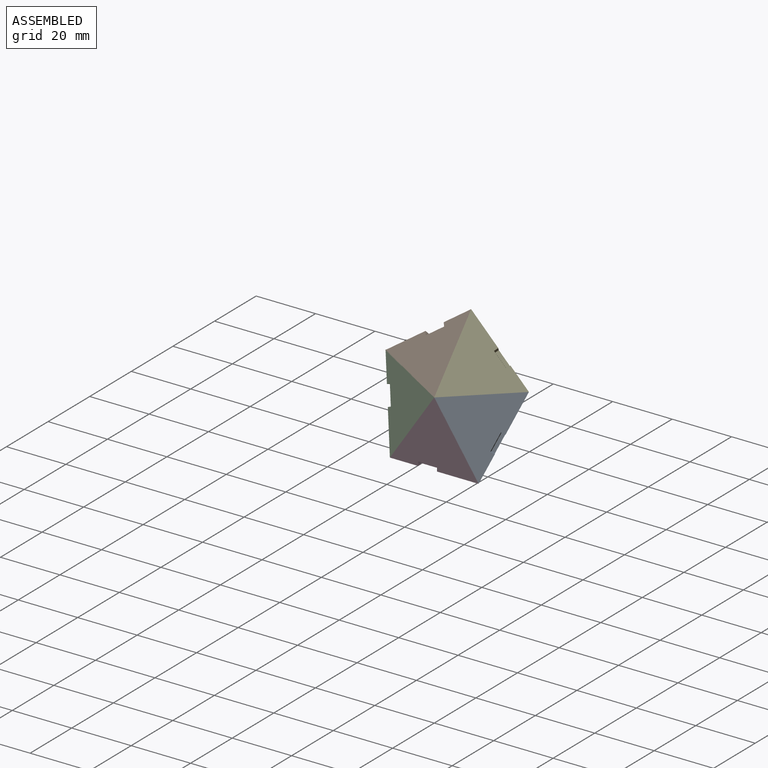
[diagram: assembled view]
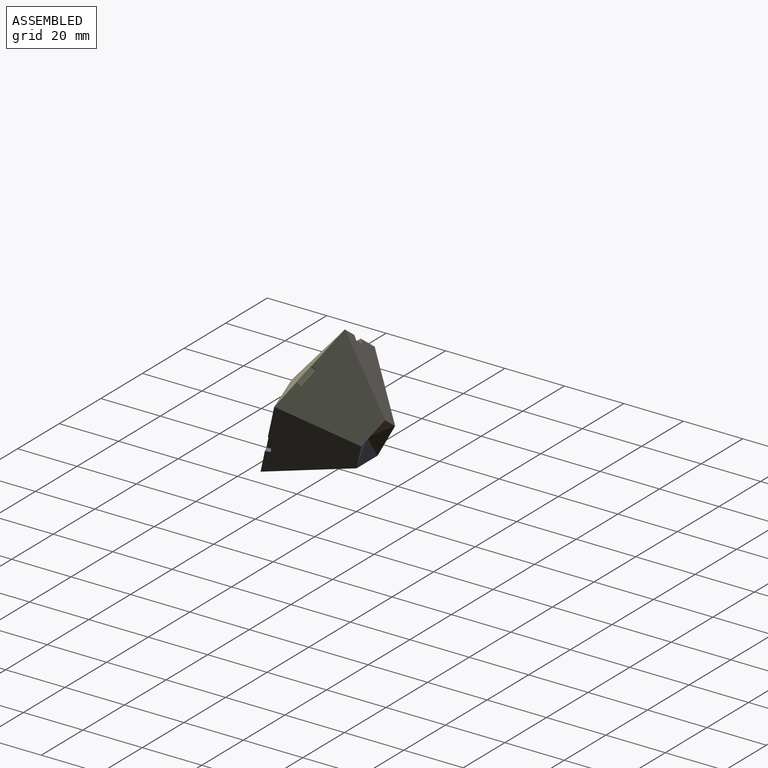
[diagram: assembled view, second angle]
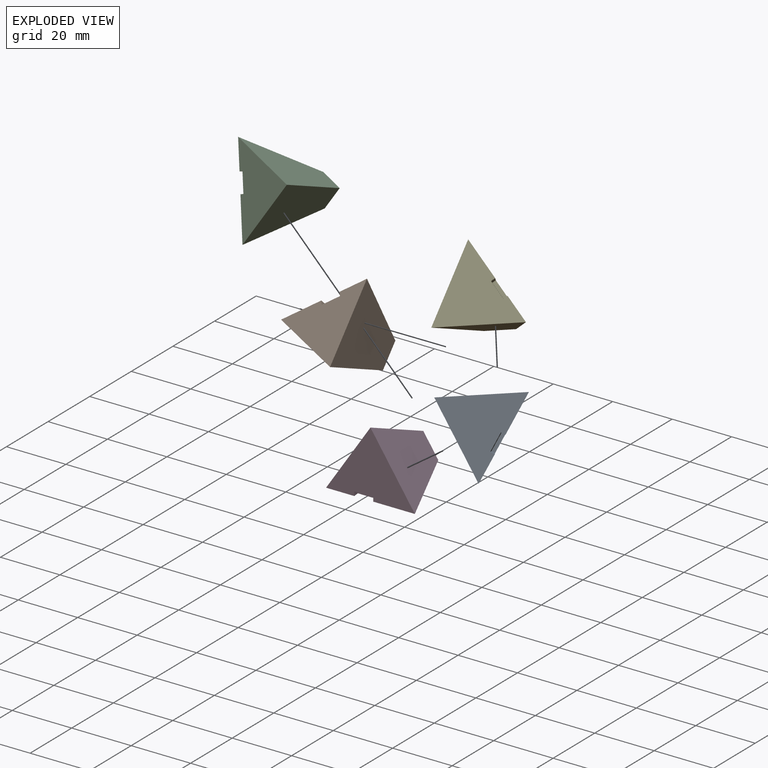
[diagram: exploded view]
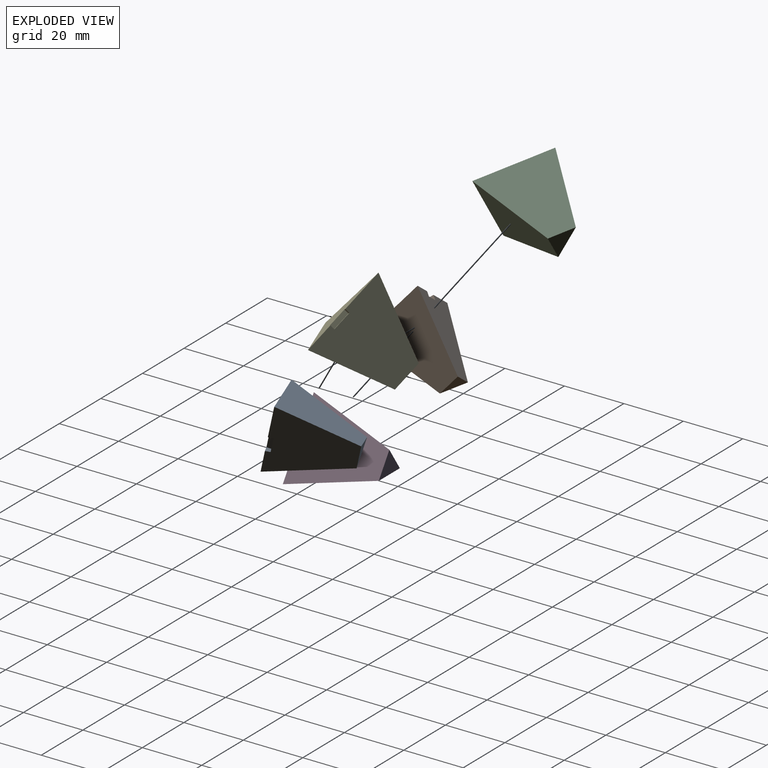
[diagram: exploded view, second angle]
ASSEMBLY  parts=5 mates=4
PART A: 9 faces, bbox 29.9x25.4x22.3 mm
  f0: plane 29.87x22.28mm, normal (0,-1,0), area 323.8mm2, adj f1,f3,f4,f5,f6,f7
  f1: plane 29.87x25.4mm, normal (0,0.16,-0.99), area 503.8mm2, adj f0,f2,f3,f4,f5,f6,f8
  f2: plane 10.09x7.53mm, normal (0,1,0), area 38mm2, adj f1,f3,f4
  f3: plane 25.4x22.28mm, normal (0.81,0.23,0.54), area 468.2mm2, adj f0,f1,f2,f4
  f4: plane 25.4x22.28mm, normal (-0.81,0.23,0.54), area 468.2mm2, adj f0,f1,f2,f3
  f5: plane 1.58x1.42mm, normal (1,0,0), area 2mm2, adj f0,f1,f7,f8
  f6: plane 1.58x1.42mm, normal (-1,0,0), area 2mm2, adj f0,f1,f7,f8
  f7: plane 6.35x1.57mm, normal (0,0,-1), area 10mm2, adj f0,f5,f6,f8
  f8: plane 6.35x1.17mm, normal (0,-1,0), area 7.4mm2, adj f1,f5,f6,f7
PART B: same geometry as A
PART C: same geometry as A
PART D: same geometry as A
PART E: same geometry as A
PLACE A rot(axis=(0,-0.92,0.39),72.1deg) t=(-76.42,-5.18,92.38)mm
PLACE B rot(axis=(0,0.92,-0.39),143.8deg) t=(-123.46,-72.17,-66.38)mm
PLACE C rot(axis=(0,0.92,-0.39),72.1deg) t=(-13.62,-70.18,-61.68)mm
PLACE D t=(15.81,-28.8,36.4)mm fixed
PLACE E rot(axis=(0,-0.92,0.39),144.1deg) t=(-162.62,-32.02,28.77)mm
MATE fastened B.f4 <-> E.f3  axis (1,0,0) through (-72.1,-37.14,14.07)mm
MATE fastened A.f3 <-> E.f4  axis (-0.31,0.37,0.88) through (-63.34,-39.6,8.24)mm
MATE fastened D.f3 <-> A.f4  axis (0.81,0.23,0.54) through (-66.66,-43.6,-1.24)mm
MATE fastened C.f3 <-> D.f4  axis (0.81,-0.23,-0.54) through (-77.47,-43.6,-1.24)mm
